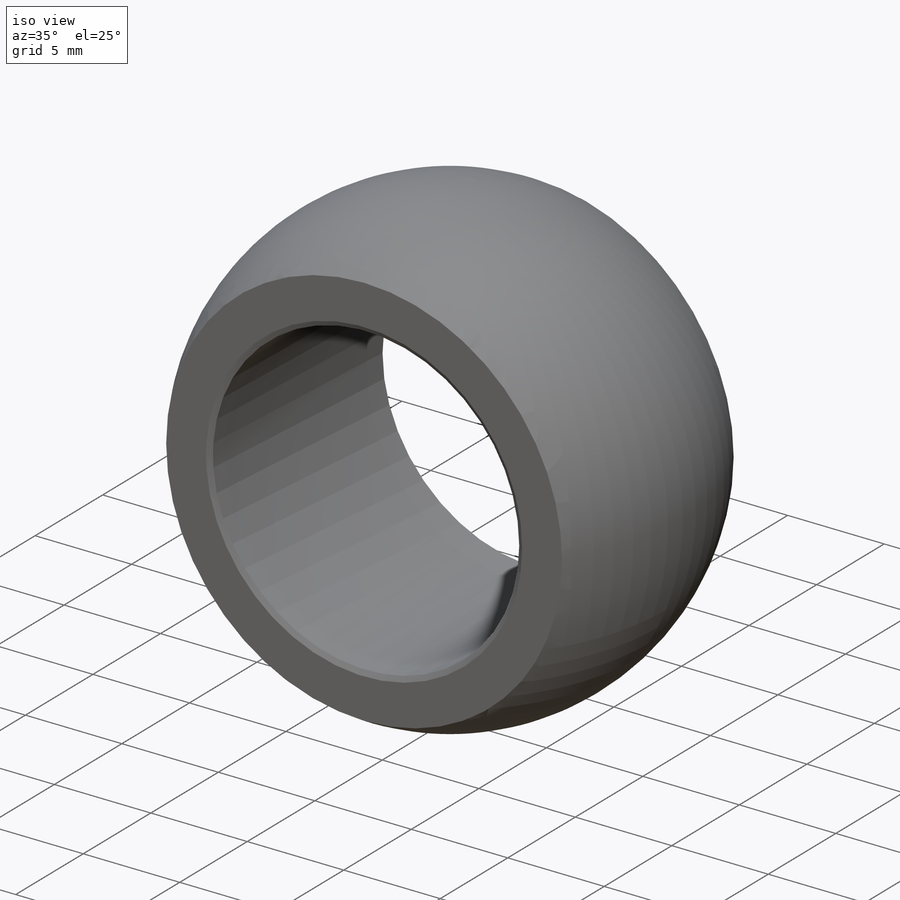
[diagram: iso view]
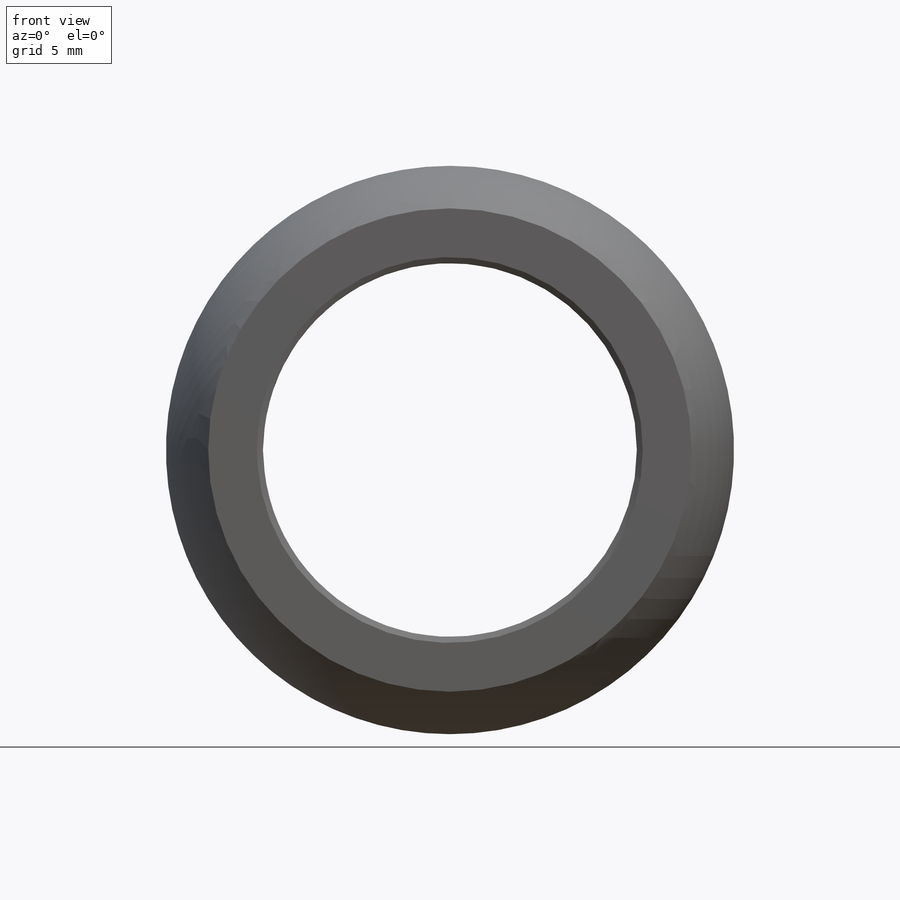
[diagram: front view]
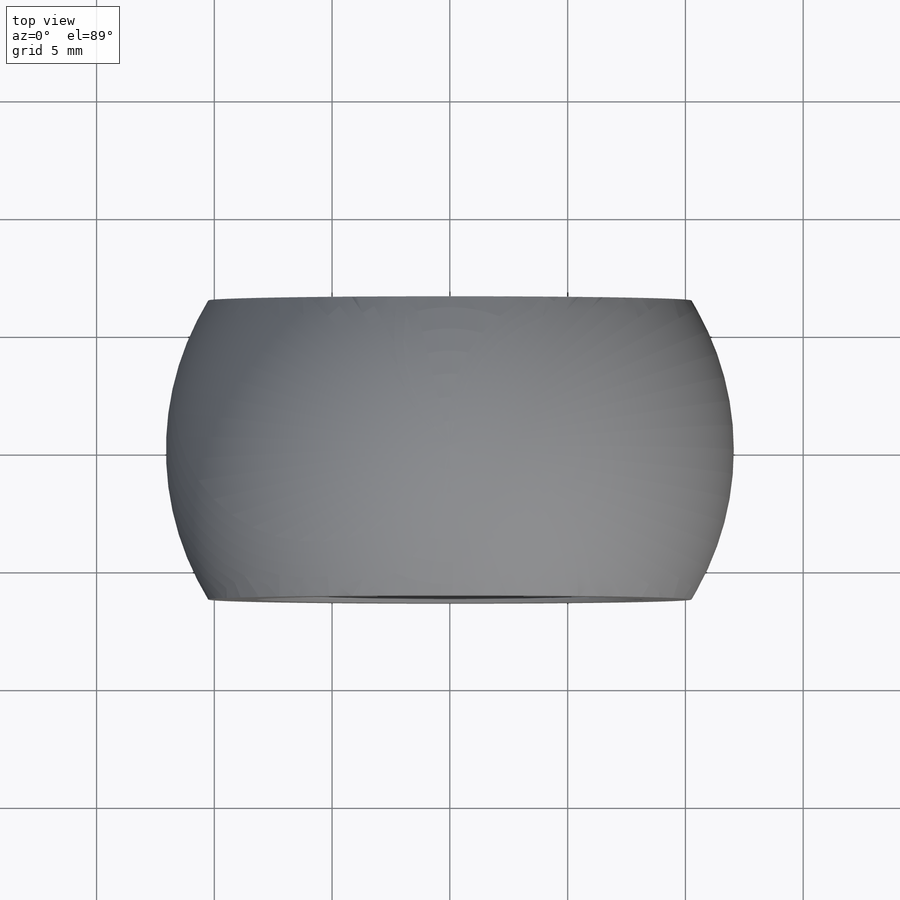
[diagram: top view]
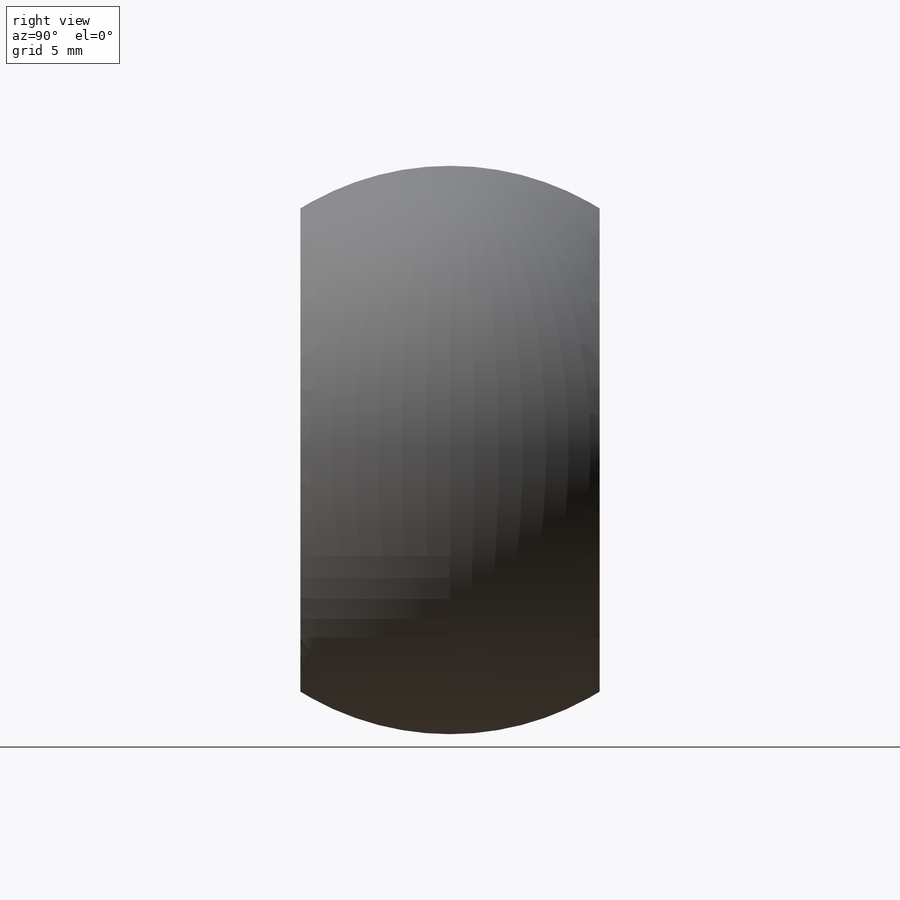
[diagram: right view]
SOLIDWORKS PART (.sldprt)
format: sldprt  version: not decoded by parser v0  size: 245,760 bytes
history: native  units: mm
features: sketch x3, cut_extrude x2, material x1, revolve x1, chamfer x1 (+13 scaffold rows collapsed)
feature tree (21):
  scaffold x13  (default folders/planes/origin — collapsed)
  material  "Material <not specified>"
  sketch  "Sketch1"  dims[D1=12.065mm]
  revolve  "Revolve1"  Angle=360deg
  sketch  "Sketch2"  dims[D1=12.7mm]
  cut_extrude  "Cut-Extrude1"  Depth=2.54mm
  sketch  "Sketch3"  dims[D1=15.875mm]
  cut_extrude  "Cut-Extrude2"  [1 undecoded]
  chamfer  "Chamfer1"  Distance=0.254mm Angle=30deg
decode coverage: 6 of 7 modeling features carry decoded parameters
note: 1 parameter value undecoded
note: suppression state not decoded; provenance and decode notes live in map.json
